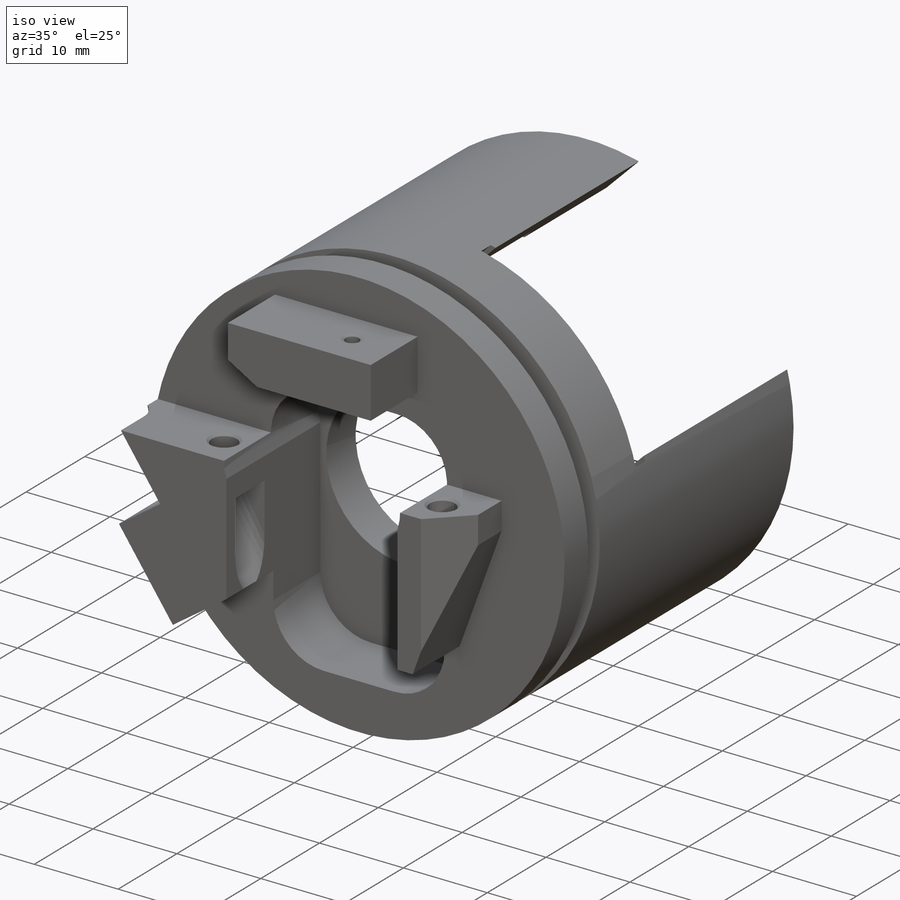
[diagram: iso view]
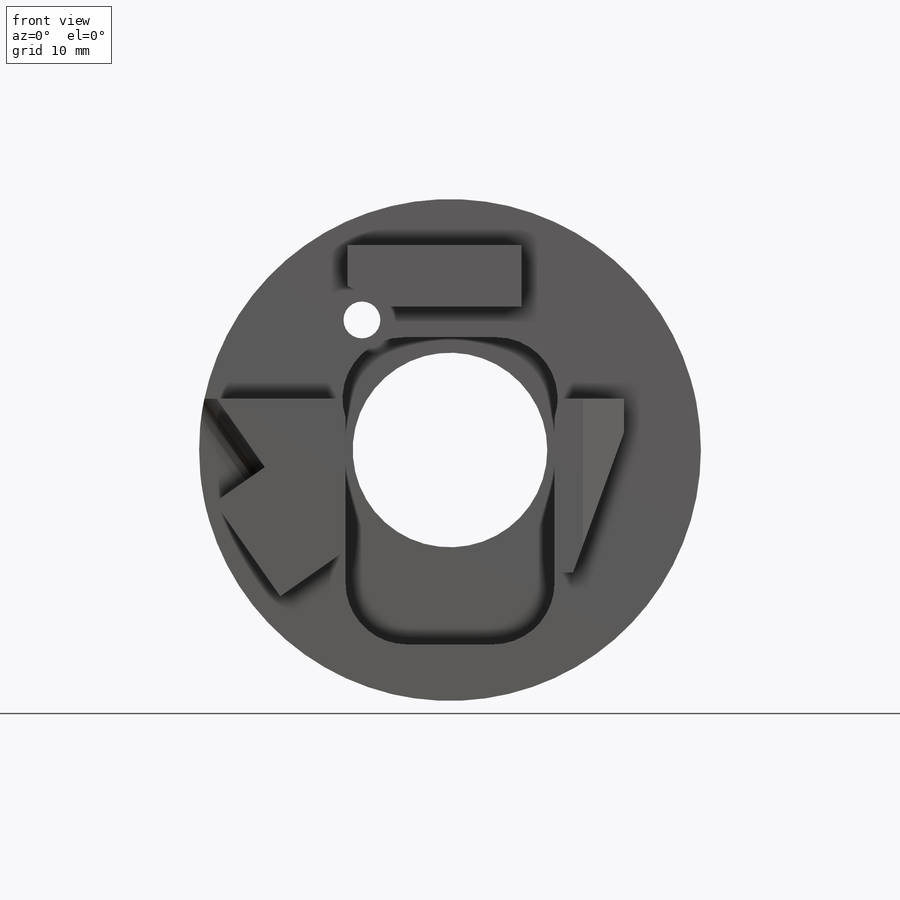
[diagram: front view]
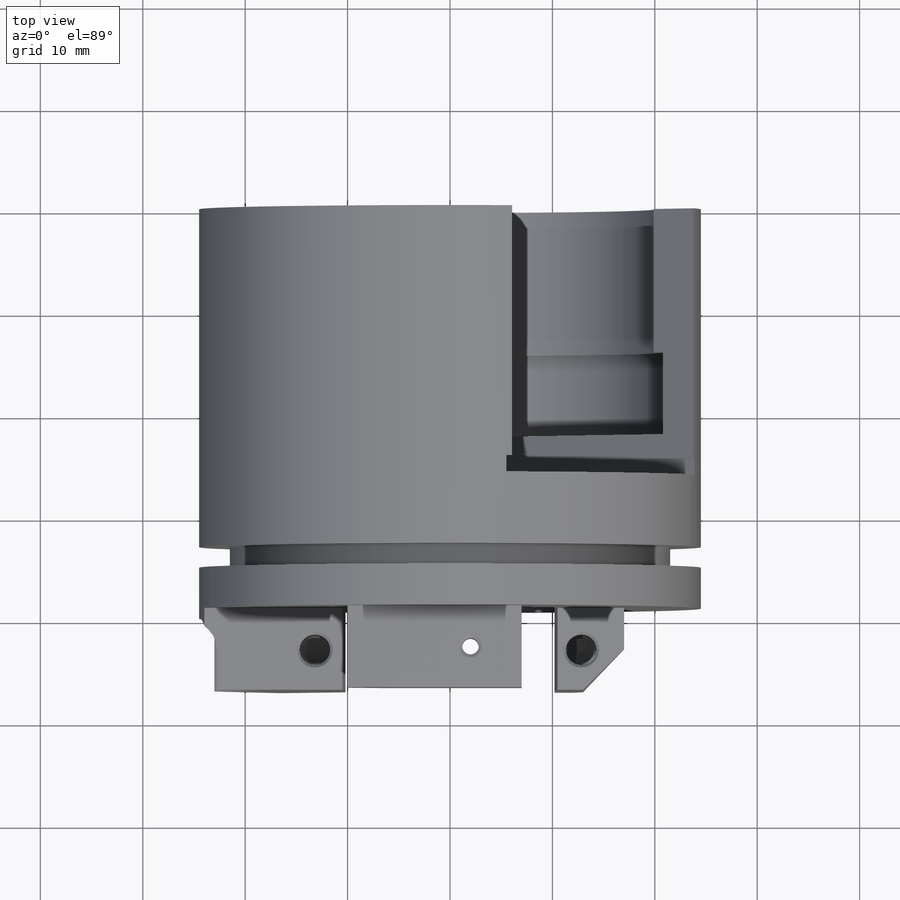
[diagram: top view]
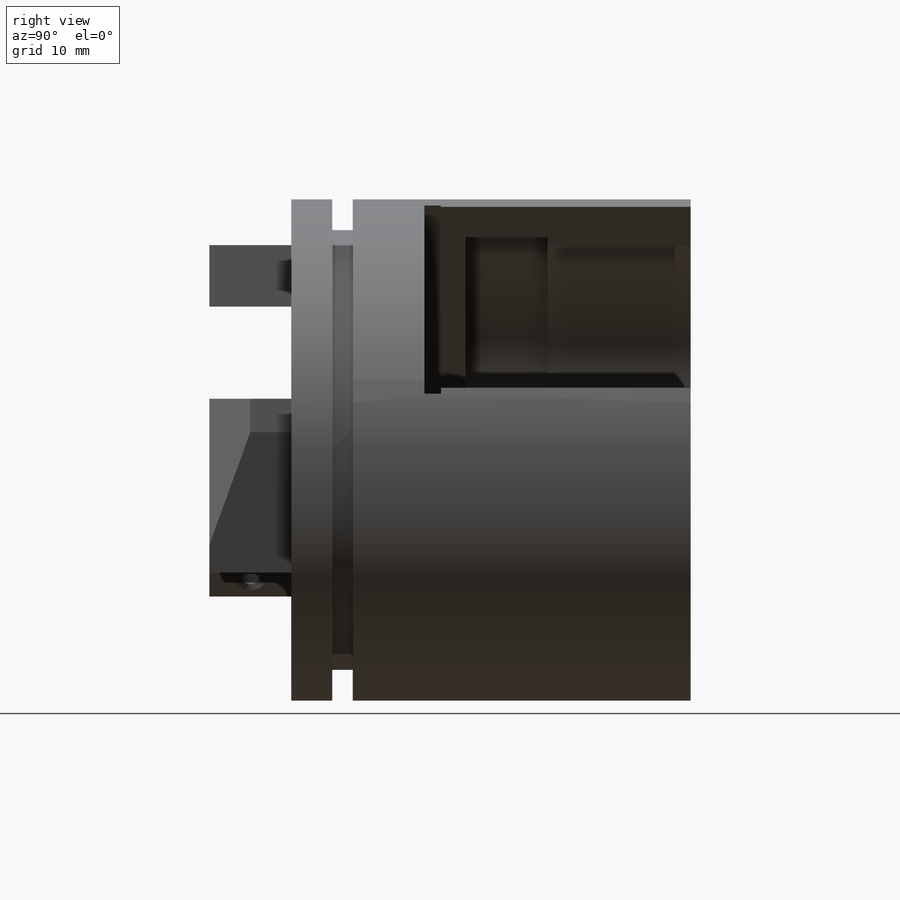
[diagram: right view]
SOLIDWORKS PART (.sldprt)
format: sldprt  version: not decoded by parser v0  size: 670,208 bytes
history: native  units: mm
features: sketch x17, cut_extrude x10, plane x6, hole x3, thread x2, material x1, revolve x1, chamfer x1 (+12 scaffold rows collapsed)
feature tree (53):
  scaffold x12  (default folders/planes/origin — collapsed)
  material  "2024-T4"
  plane  "Спереди"
  plane  "Сверху"
  plane  "Справа"
  sketch  "Эскиз2"  dims[c1.D1=20.0mm c1.D2=32.0mm c1.D3=9.5mm c1.D4=22.0mm c1.D5=24.5mm c1.D6=5.0mm c2.D1=12.0mm c2.D6=21.0mm c2.D7=3.0mm c2.D8=8.0mm c2.D4=22.0mm c3.D6=8.0mm c3.D2=32.0mm c4.D6=8.0mm c4.D5=24.5mm c5.D6=2.0mm c5.D3=19.0mm c5.D4=43.0mm c5.D5=49.0mm c5.D7=40.0mm c5.D8=22.0mm c5.D2=47.0mm c5.D9=42.0mm c5.D10=3.0mm c5.D11=~19.584918mm c6.D7=8.0mm c6.D10=40.0mm c7.D7=9.0mm]
  revolve  "Повернуть2"  Angle=360deg
  sketch  "Эскиз11"  dims[c1.D3=3.0mm c1.D6=3.0mm c1.D7=3.0mm c2.D6=8.0mm c2.D3=6.0mm c2.D1=11.0mm c2.D2=19.0mm c2.D4=20.4mm c2.D5=10.2mm c3.D6=10.2mm c3.D7=20.4mm c4.D6=10.5mm c4.D7=21.0mm c5.D7=~155.320509deg]
  cut_extrude  "Вырез-Вытянуть7"  Depth=16mm
  sketch  "Эскиз8"  dims[c1.D1=25.0mm c1.D2=12.5mm c1.D3=~50.732861mm c1.D4=~25.673759mm c2.D2=12.5mm c2.D4=~23.739937mm c2.D3=~36.370323mm c3.D3=45.0deg]
  cut_extrude  "Вырез-Вытянуть3"  Depth=25.5mm
  sketch  "Эскиз5"  dims[c1.D13=28.0mm c1.D9=28.0mm c1.D2=50.0mm c1.D7=18.0mm c1.D1=20.0mm c2.D2=10.0mm c2.D3=25.0mm c2.D4=50.0mm c2.D5=5.0mm c2.D6=5.0mm c2.D7=10.0mm c2.D8=10.0mm c2.D9=50.0mm c2.D10=50.0mm c2.D11=25.0mm c2.D12=25.0mm c3.D3=112.5deg c4.D3=50.0mm c5.D3=30.0deg c5.D5=21.79mm c5.D7=42.0mm c5.D1=20.0mm c5.D4=5.0mm c5.D6=5.0mm c6.D7=5.0mm c6.D8=76.0deg c7.D8=10.0mm c7.D9=7.0mm c8.D8=24.0mm c8.D9=9.0mm c8.D10=3.0mm c8.D11=12.0mm c8.D12=5.0mm c9.D12=165.0deg c10.D12=15.0mm c11.D12=75.0deg c12.D12=15.0mm c13.D12=75.0deg c13.D13=3.0mm c13.D14=75.0deg c13.D15=1.0mm c13.D16=45.0deg c13.D17=3.0mm c13.D18=45.0deg c13.D19=1.0mm c13.D20=45.0deg c13.D7=3.0mm c14.D13=3.0mm c14.D7=1.5mm c14.D10=8.0mm c14.D1=~17.549955mm c15.D1=55.0deg c15.D2=17.0mm c15.D3=5.0mm c15.D4=17.0mm c15.D6=6.0mm c15.D7=24.0mm c15.D8=6.0mm c16.D2=17.0mm c16.D3=5.0mm c16.D7=17.0mm c16.D8=20.0mm c16.D9=10.0mm c16.D10=17.0mm c17.D7=17.0mm c17.D11=2.2mm c18.D7=17.0mm c18.D12=~7.243623mm c19.D12=20.0deg c19.D13=5.0mm c19.D14=2.0mm c19.D15=60.0deg]
  cut_extrude  "Вырез-Вытянуть4"  Depth=8mm
  sketch  "Эскиз18"  dims[c1.D1=2.5mm c1.D2=2.5mm c1.D3=2.5mm c1.D4=2.5mm c1.D5=2.5mm c2.D3=2.5mm c2.D2=2.5mm c3.D3=2.5mm c3.D2=13.0mm c4.D3=4.0mm c4.D2=3.0mm c5.D3=7.5mm c5.D4=26.0mm c6.D3=4.0mm c6.D2=12.8mm c7.D3=8.08mm]
  sketch  "Эскиз19"  dims[c1.D1=~14.294897mm c2.D1=20.0deg c2.D2=23.0mm]
  cut_extrude  "Вырез-Вытянуть11"  [1 undecoded]
  cut_extrude  "Вырез-Вытянуть10"  Depth=5mm
  hole  "Отверстие обработанное метчиком M31"  [1 undecoded]
  sketch  "Эскиз25"
  sketch  "Эскиз24"  dims[hole-wizard template sketch: 27 standard entries collapsed; hole parameters kept: c8.Глубина сверла=8.5mm c8.Диаметр резьбы=3.0mm c8.Глубина резьбы=6.0mm c8.Диаметр передней зенковки=3.5mm c8.D6=~4.399409mm c8.Угол передней зенковки=90.0deg c8.D7=~14.816244mm c8.Угол заточки сверла=118.0deg]
  chamfer  "Фаска1"  Distance=4mm Angle=45deg
  sketch  "Эскиз20"  dims[c1.D1=3.6mm c1.D2=3.7mm c1.D3=3.2mm c2.D2=8.6mm c2.D3=12.7mm]
  cut_extrude  "для отвертки_1"  [1 undecoded]
  hole  "Отверстие обработанное метчиком M21"  [1 undecoded]
  sketch  "Эскиз22"  dims[D1=4.0mm D2=12.0mm]
  sketch  "Эскиз21"  dims[hole-wizard template sketch: 47 standard entries collapsed; hole parameters kept: c15.Глубина проходного сверла=6.0mm c15.Диаметр передней зенковки=2.2mm c15.D4=~3.666174mm c15.Угол передней зенковки=120.0deg c15.Диаметр задней зенковки=2.2mm c15.D6=~9.919017mm c15.Угол задней зенковки=120.0deg]
  thread  "Отверстие резьбы1"  Diameter=2mm  [1 undecoded]
  plane  "Плоскость1"
  plane  "Плоскость2"
  sketch  "Эскиз23"  dims[c1.D1=5.0mm c1.D2=5.0mm c1.D3=5.0mm c1.D4=~3.082202mm c2.D1=2.5mm c2.D2=2.5mm c2.D3=2.5mm c3.D2=4.0mm c3.D3=14.0mm c3.D1=11.5mm c4.D3=4.0mm]
  cut_extrude  "Вырез-Вытянуть12"  Depth=15mm
  sketch  "Эскиз26"  dims[c1.D1=~1.744757mm c1.D2=~1.744757mm c2.D1=14.0mm c2.D2=4.0mm c2.D3=5.0mm]
  cut_extrude  "Вырез-Вытянуть13"  Depth=13mm
  sketch  "Эскиз27"  dims[c1.D2=2.5mm c1.D3=2.0mm c1.D4=3.5mm c2.D3=3.0mm c2.D1=5.0mm c2.D2=4.0mm c3.D3=19.0mm c3.D4=10.0mm c4.D3=2.5mm c4.D1=1.0mm c4.D2=6.0mm]
  cut_extrude  "Вырез-Вытянуть14"  Depth=16mm
  hole  "Отверстие обработанное метчиком #2-561"  [1 undecoded]
  sketch  "Эскиз29"  dims[D1=4.0mm D2=2.5mm]
  sketch  "Эскиз28"  dims[hole-wizard template sketch: 46 standard entries collapsed; hole parameters kept: c15.Диаметр проходного сверла=1.778mm c15.Глубина проходного сверла=11.2mm c15.Диаметр передней зенковки=2.794mm c15.D4=~3.666174mm c15.Угол передней зенковки=110.0deg c15.Диаметр задней зенковки=2.794mm c15.D6=~9.919017mm c15.Угол задней зенковки=110.0deg]
  thread  "Отверстие резьбы2"  Diameter=2.1844mm  [1 undecoded]
  plane  "Плоскость3"
  sketch  "Эскиз30"  dims[D1=9.0mm D2=1.6mm D3=16.0mm D4=12.5mm D5=25.0mm D6=13.0mm D7=26.0mm]
  cut_extrude  "Вырез-Вытянуть15"  [1 undecoded]
decode coverage: 27 of 34 modeling features carry decoded parameters
note: ~ marks probable driven/reference dimensions
note: 8 parameter values undecoded
summary: no parameter record found for 6 features
note: suppression state not decoded; provenance and decode notes live in map.json
